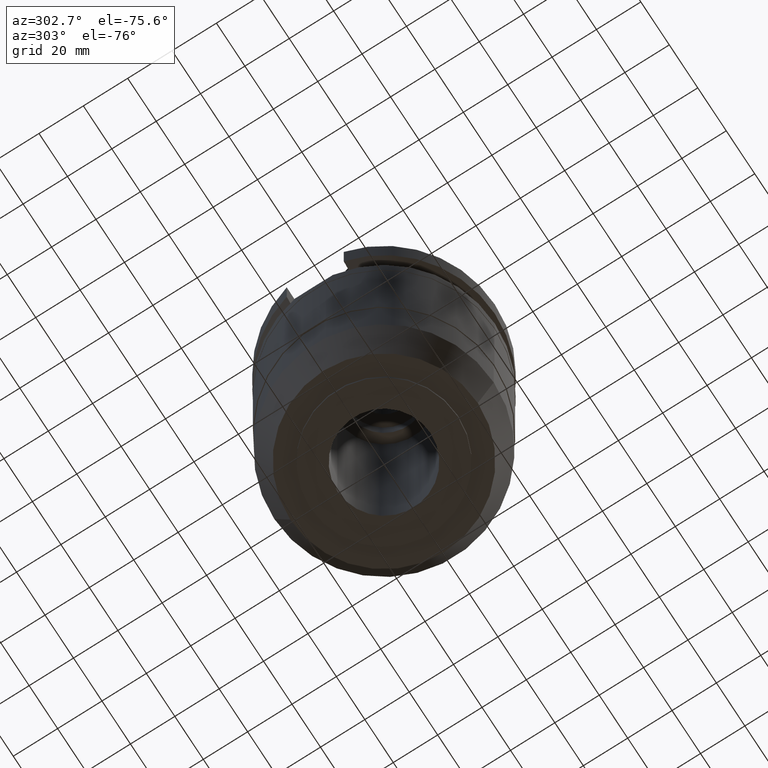
[diagram: clean part render]
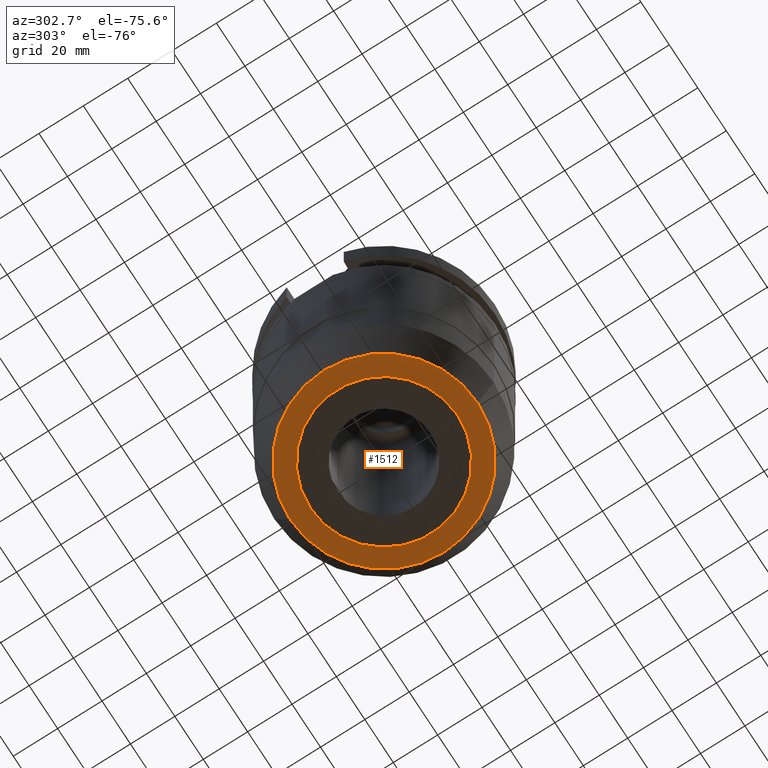
[diagram: same view with one face highlighted and labeled with its STEP entity id]
A machine part, auxiliary view. The second image highlights one B-rep face of the part: STEP entity #1512.
In plain terms, the highlighted planar face has unit normal (0, 0, -1).
Its self-contained STEP definition (entity closure, byte-faithful):
#292=CARTESIAN_POINT('',(0.E0,0.E0,-1.355E2));
#293=DIRECTION('',(0.E0,0.E0,1.E0));
#294=DIRECTION('',(0.E0,-1.E0,0.E0));
#295=AXIS2_PLACEMENT_3D('',#292,#293,#294);
#300=CARTESIAN_POINT('',(0.E0,0.E0,-1.355E2));
#301=DIRECTION('',(0.E0,0.E0,1.E0));
#302=DIRECTION('',(0.E0,1.E0,0.E0));
#303=AXIS2_PLACEMENT_3D('',#300,#301,#302);
#308=CARTESIAN_POINT('',(0.E0,2.617560068498E-14,-1.355E2));
#309=DIRECTION('',(0.E0,0.E0,-1.E0));
#310=DIRECTION('',(0.E0,-1.E0,0.E0));
#311=AXIS2_PLACEMENT_3D('',#308,#309,#310);
#316=CARTESIAN_POINT('',(0.E0,2.617560068498E-14,-1.355E2));
#317=DIRECTION('',(0.E0,0.E0,-1.E0));
#318=DIRECTION('',(0.E0,1.E0,0.E0));
#319=AXIS2_PLACEMENT_3D('',#316,#317,#318);
#1102=CARTESIAN_POINT('',(0.E0,3.325E1,-1.355E2));
#1103=VERTEX_POINT('',#1102);
#1104=CARTESIAN_POINT('',(0.E0,-3.325E1,-1.355E2));
#1105=VERTEX_POINT('',#1104);
#1106=CARTESIAN_POINT('',(0.E0,-4.228729529800E1,-1.355E2));
#1107=CARTESIAN_POINT('',(0.E0,4.228729529800E1,-1.355E2));
#1108=VERTEX_POINT('',#1106);
#1109=VERTEX_POINT('',#1107);
#1497=CARTESIAN_POINT('',(0.E0,0.E0,-1.355E2));
#1498=DIRECTION('',(0.E0,0.E0,-1.E0));
#1499=DIRECTION('',(0.E0,-1.E0,0.E0));
#1500=AXIS2_PLACEMENT_3D('',#1497,#1498,#1499);
#1501=PLANE('',#1500);
#1503=ORIENTED_EDGE('',*,*,#1502,.T.);
#1505=ORIENTED_EDGE('',*,*,#1504,.T.);
#1506=EDGE_LOOP('',(#1503,#1505));
#1507=FACE_OUTER_BOUND('',#1506,.F.);
#1508=ORIENTED_EDGE('',*,*,#1490,.T.);
#1509=ORIENTED_EDGE('',*,*,#1479,.T.);
#1510=EDGE_LOOP('',(#1508,#1509));
#1511=FACE_BOUND('',#1510,.F.);
#296=CIRCLE('',#295,4.228729529800E1);
#304=CIRCLE('',#303,4.228729529800E1);
#312=CIRCLE('',#311,3.325E1);
#320=CIRCLE('',#319,3.325E1);
#1479=EDGE_CURVE('',#1103,#1105,#320,.T.);
#1490=EDGE_CURVE('',#1105,#1103,#312,.T.);
#1502=EDGE_CURVE('',#1108,#1109,#296,.T.);
#1504=EDGE_CURVE('',#1109,#1108,#304,.T.);
#1512=ADVANCED_FACE('',(#1507,#1511),#1501,.T.);